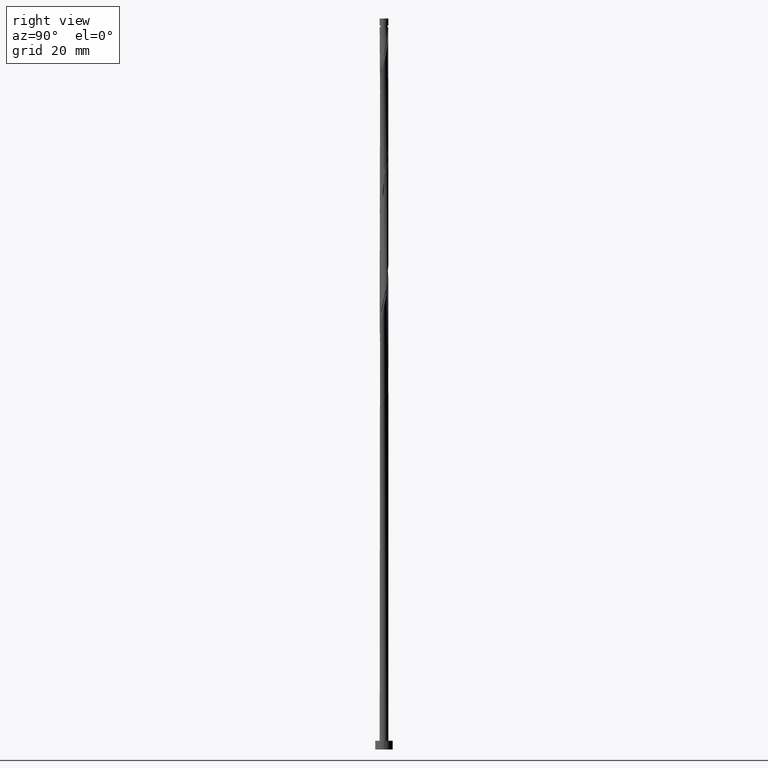
[diagram: clean part render]
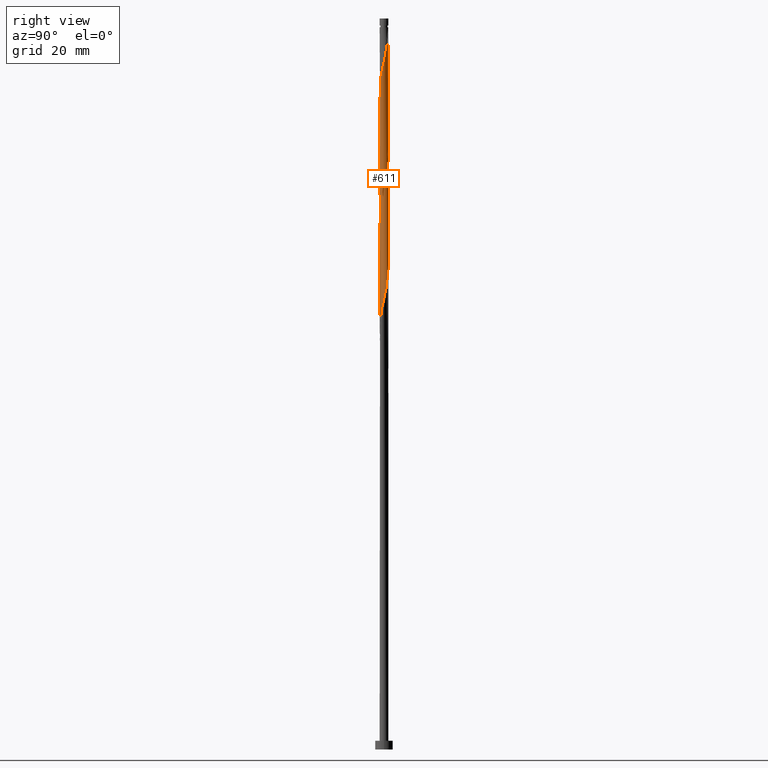
[diagram: same view with one face highlighted and labeled with its STEP entity id]
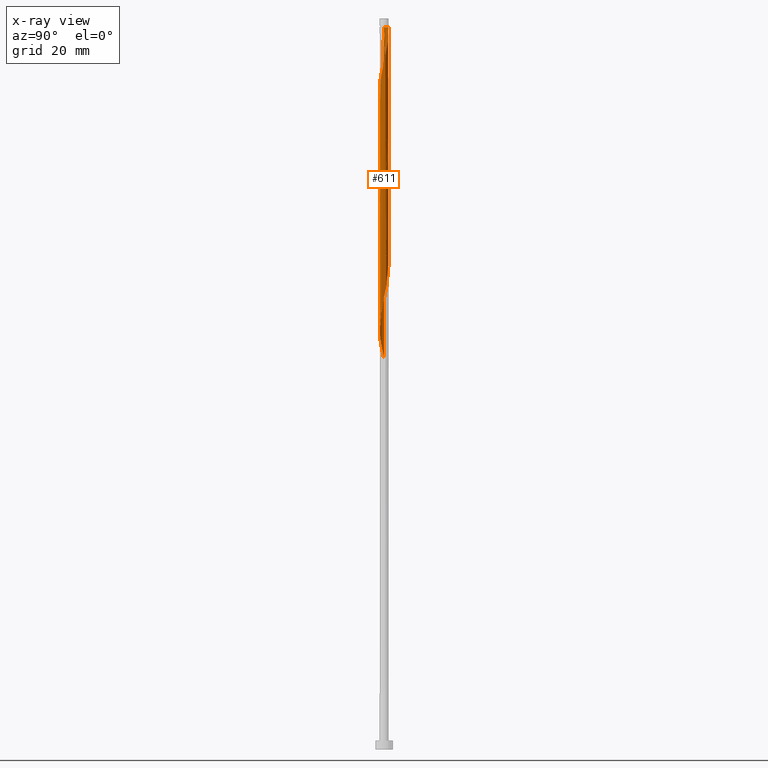
[diagram: x-ray of the same camera — body ghosted, the highlighted face saturated]
A machine part, right view. The second image highlights one B-rep face of the part: STEP entity #611.
The next image is the same camera in x-ray: the body ghosted, the highlighted face saturated — about 0% of this face is hidden behind the body in this view.
In plain terms, the highlighted cylindrical surface (bore or boss wall) has radius 0.75 mm, axis along (-0, -0, -1).
Its self-contained STEP definition (entity closure, byte-faithful):
#6 = CARTESIAN_POINT ( 'NONE',  ( -0.3690708837193969472, -0.6529063353886110921, 70.36957666063429429 ) ) ;
#11 = CARTESIAN_POINT ( 'NONE',  ( -0.2656606792045276833, -0.7113614207465893680, 70.89040999396759446 ) ) ;
#16 = EDGE_CURVE ( 'NONE', #1268, #358, #370, .T. ) ;
#17 = ORIENTED_EDGE ( 'NONE', *, *, #1043, .F. ) ;
#18 = CARTESIAN_POINT ( 'NONE',  ( 0.2032037479510120648, -0.7316549078771213965, 72.97374332730092306 ) ) ;
#26 = CARTESIAN_POINT ( 'NONE',  ( -0.7316549078771213965, -0.2032037479510120925, 67.76540999396760867 ) ) ;
#34 = CARTESIAN_POINT ( 'NONE',  ( -0.7500000000000012212, 9.782999566041570812E-16, 66.86771243543789467 ) ) ;
#38 = CARTESIAN_POINT ( 'NONE',  ( -0.7500000000000001110, 0.000000000000000000, 125.0000000000000000 ) ) ;
#63 = CARTESIAN_POINT ( 'NONE',  ( -0.6529063353886108700, -0.3690708837193967806, 108.9112433273009657 ) ) ;
#66 = EDGE_CURVE ( 'NONE', #1242, #802, #566, .T. ) ;
#70 = CARTESIAN_POINT ( 'NONE',  ( 0.7350000000000010969, 0.1492481155659932113, 118.2862433273009515 ) ) ;
#78 = CARTESIAN_POINT ( 'NONE',  ( 0.5069016496034539632, 0.5527664223062929150, 120.3695766606343085 ) ) ;
#80 = CARTESIAN_POINT ( 'NONE',  ( 0.7500000000000001110, 9.184850993605150903E-17, 125.0000000000000000 ) ) ;
#82 = CARTESIAN_POINT ( 'NONE',  ( -0.5527664223062934701, -0.5069016496034537411, 90.16124332730096569 ) ) ;
#84 = CARTESIAN_POINT ( 'NONE',  ( -0.2032037479510122036, -0.7316549078771213965, 111.5154099939676229 ) ) ;
#85 = EDGE_CURVE ( 'NONE', #1242, #800, #585, .T. ) ;
#103 = CARTESIAN_POINT ( 'NONE',  ( -0.7316549078771213965, -0.2032037479510120925, 88.59874332730095148 ) ) ;
#105 = FACE_OUTER_BOUND ( 'NONE', #847, .T. ) ;
#109 = CARTESIAN_POINT ( 'NONE',  ( -0.6529063353886110921, 0.3690708837193968916, 85.99457666063428007 ) ) ;
#117 = CARTESIAN_POINT ( 'NONE',  ( 0.6330517563783203405, 0.4193520491762750546, 79.22374332730090885 ) ) ;
#135 = CARTESIAN_POINT ( 'NONE',  ( 0.03283555192745900297, 0.7586385792534126038, 103.1820766606342517 ) ) ;
#138 = DIRECTION ( 'NONE',  ( -0.000000000000000000, -0.000000000000000000, -1.000000000000000000 ) ) ;
#143 = CARTESIAN_POINT ( 'NONE',  ( 0.5527664223062936921, 0.5069016496034537411, 100.5779099939676229 ) ) ;
#150 = ORIENTED_EDGE ( 'NONE', *, *, #85, .F. ) ;
#161 = CARTESIAN_POINT ( 'NONE',  ( 0.7451467435652671112, -0.08518409801177667662, 117.2445766606342801 ) ) ;
#164 = ORIENTED_EDGE ( 'NONE', *, *, #16, .T. ) ;
#168 = CARTESIAN_POINT ( 'NONE',  ( -0.7113614207465897010, -0.2656606792045276833, 108.3904099939676371 ) ) ;
#181 = CARTESIAN_POINT ( 'NONE',  ( -0.5944512500306322611, -0.4724810882342659335, 109.4320766606343227 ) ) ;
#187 = CARTESIAN_POINT ( 'NONE',  ( -0.6330517563783203405, -0.4193520491762751656, 89.64040999396760867 ) ) ;
#190 = CARTESIAN_POINT ( 'NONE',  ( -0.5069016496034537411, -0.5527664223062929150, 109.9529099939675945 ) ) ;
#197 = CARTESIAN_POINT ( 'NONE',  ( 0.7500000000000007772, -0.07537783614444378000, 97.78340786003006713 ) ) ;
#213 = CARTESIAN_POINT ( 'NONE',  ( -0.03283555192745912094, -0.7586385792534126038, 92.76540999396762288 ) ) ;
#224 = CARTESIAN_POINT ( 'NONE',  ( -0.5527664223062934701, -0.5069016496034537411, 69.32790999396763709 ) ) ;
#242 = CARTESIAN_POINT ( 'NONE',  ( 0.7350000000000015410, -0.1492481155659935166, 76.61957666063428007 ) ) ;
#252 = CARTESIAN_POINT ( 'NONE',  ( -0.7500000000000012212, -0.04273030308482415884, 67.05722352464516689 ) ) ;
#257 = EDGE_CURVE ( 'NONE', #1268, #802, #646, .T. ) ;
#260 = CARTESIAN_POINT ( 'NONE',  ( -0.7350000000000015410, 0.1492481155659934611, 107.8695766606343085 ) ) ;
#279 = CARTESIAN_POINT ( 'NONE',  ( 0.3112778985636437956, 0.6823533321277208685, 121.4112433273009373 ) ) ;
#296 = CARTESIAN_POINT ( 'NONE',  ( -0.08518409801177663498, -0.7451467435652671112, 112.0362433273009657 ) ) ;
#313 = CARTESIAN_POINT ( 'NONE',  ( -0.2032037479510120925, 0.7316549078771213965, 83.39040999396759446 ) ) ;
#318 = CARTESIAN_POINT ( 'NONE',  ( 0.7500000000000009992, 1.008286162170567901E-15, 98.11771243543790888 ) ) ;
#353 = CARTESIAN_POINT ( 'NONE',  ( 0.4193520491762751656, -0.6330517563783203405, 74.01540999396763709 ) ) ;
#355 = DIRECTION ( 'NONE',  ( -0.000000000000000000, -0.000000000000000000, -1.000000000000000000 ) ) ;
#358 = VERTEX_POINT ( 'NONE', #755 ) ;
#359 = CARTESIAN_POINT ( 'NONE',  ( -0.7500000000000012212, -4.460448078003628014E-16, 108.5343791021045661 ) ) ;
#366 = CARTESIAN_POINT ( 'NONE',  ( 0.2656606792045277943, 0.7113614207465893680, 102.1404099939676087 ) ) ;
#367 = DIRECTION ( 'NONE',  ( -1.000000000000000000, 0.000000000000000000, 0.000000000000000000 ) ) ;
#370 = LINE ( 'NONE', #952, #1088 ) ;
#373 = CARTESIAN_POINT ( 'NONE',  ( -0.7451467435652672222, -0.08518409801177653784, 67.24457666063430850 ) ) ;
#392 = CARTESIAN_POINT ( 'NONE',  ( -0.7350000000000010969, -0.1492481155659933223, 107.8695766606342943 ) ) ;
#398 = CARTESIAN_POINT ( 'NONE',  ( 0.7500000000000009992, 1.008286162170567901E-15, 98.11771243543790888 ) ) ;
#401 = CARTESIAN_POINT ( 'NONE',  ( 0.2656606792045276277, -0.7113614207465897010, 113.5987433273009941 ) ) ;
#407 = CARTESIAN_POINT ( 'NONE',  ( 0.3690708837193967806, -0.6529063353886108700, 114.1195766606343085 ) ) ;
#420 = CARTESIAN_POINT ( 'NONE',  ( 0.6529063353886108700, 0.3690708837193966696, 119.3279099939676087 ) ) ;
#425 = CARTESIAN_POINT ( 'NONE',  ( -0.3112778985636437956, 0.6823533321277210906, 83.91124332730095148 ) ) ;
#431 = CARTESIAN_POINT ( 'NONE',  ( -0.7586385792534126038, 0.03283555192745905155, 87.55707666063429429 ) ) ;
#435 = AXIS2_PLACEMENT_3D ( 'NONE', #1343, #473, #367 ) ;
#465 = CARTESIAN_POINT ( 'NONE',  ( 0.6823533321277210906, 0.3112778985636436846, 78.70290999396763709 ) ) ;
#471 = CARTESIAN_POINT ( 'NONE',  ( -0.2032037479510120925, 0.7316549078771213965, 104.2237433273009373 ) ) ;
#472 = VECTOR ( 'NONE', #138, 1000.000000000000000 ) ;
#473 = DIRECTION ( 'NONE',  ( -0.000000000000000000, -0.000000000000000000, -1.000000000000000000 ) ) ;
#480 = CARTESIAN_POINT ( 'NONE',  ( 0.03283555192745900297, 0.7586385792534126038, 82.34874332730095148 ) ) ;
#486 = CARTESIAN_POINT ( 'NONE',  ( -0.7113614207465895900, 0.2656606792045276833, 107.3487433273009515 ) ) ;
#507 = ORIENTED_EDGE ( 'NONE', *, *, #66, .T. ) ;
#508 = CARTESIAN_POINT ( 'NONE',  ( 0.5944512500306324831, 0.4724810882342659335, 119.8487433273009657 ) ) ;
#513 = CARTESIAN_POINT ( 'NONE',  ( 0.4193520491762752767, 0.6330517563783202295, 120.8904099939676229 ) ) ;
#520 = CARTESIAN_POINT ( 'NONE',  ( -0.1492481155659927672, 0.7349999999999972111, 123.4945766606342943 ) ) ;
#527 = CARTESIAN_POINT ( 'NONE',  ( -0.03283555192746202139, 0.7586385792534130479, 122.9737433273009799 ) ) ;
#534 = CARTESIAN_POINT ( 'NONE',  ( 0.7586385792534124928, 0.03283555192745887807, 117.7654099939676371 ) ) ;
#548 = CARTESIAN_POINT ( 'NONE',  ( 0.7500000000000009992, 1.008286162170567901E-15, 98.11771243543790888 ) ) ;
#554 = CARTESIAN_POINT ( 'NONE',  ( -0.7451467435652672222, -0.08518409801177653784, 88.07790999396762288 ) ) ;
#566 = CIRCLE ( 'NONE', #1113, 0.7499999999999970024 ) ;
#567 = CARTESIAN_POINT ( 'NONE',  ( 0.7316549078771216186, 0.2032037479510120648, 99.01540999396762288 ) ) ;
#576 = CARTESIAN_POINT ( 'NONE',  ( -0.7500000000000013323, 0.07537783614444036606, 108.2000745266967101 ) ) ;
#583 = CARTESIAN_POINT ( 'NONE',  ( 0.5527664223062936921, 0.5069016496034537411, 79.74457666063428007 ) ) ;
#585 = LINE ( 'NONE', #38, #472 ) ;
#591 = CARTESIAN_POINT ( 'NONE',  ( 0.08518409801177649621, -0.7451467435652672222, 72.45290999396763709 ) ) ;
#599 = CARTESIAN_POINT ( 'NONE',  ( 0.6330517563783203405, 0.4193520491762750546, 100.0570766606342801 ) ) ;
#607 =( BOUNDED_CURVE ( )  B_SPLINE_CURVE ( 2, ( #1239, #576, #260, #486, #921, #715, #687, #1160, #1383, #471, #1132, #135, #1030, #366, #817, #1153, #143, #599, #1053, #567, #1021, #1391, #318 ),
 .UNSPECIFIED., .F., .T. ) 
 B_SPLINE_CURVE_WITH_KNOTS ( ( 3, 2, 2, 2, 2, 2, 2, 2, 2, 2, 2, 3 ),
 ( 0.4295322023138550827, 0.4375000000000000000, 0.4500000000000000111, 0.4625000000000000222, 0.4749999999999999778, 0.4874999999999999889, 0.5000000000000000000, 0.5124999999999999556, 0.5250000000000000222, 0.5374999999999999778, 0.5500000000000000444, 0.5545322023138554712 ),
 .UNSPECIFIED. ) 
 CURVE ( )  GEOMETRIC_REPRESENTATION_ITEM ( )  RATIONAL_B_SPLINE_CURVE ( ( 0.9039174447099551646, 0.9019565955404843516, 0.9090909090909328194, 0.8978984914501488834, 0.9090909090909328194, 0.8978984914501488834, 0.9090909090909328194, 0.8978984914501488834, 0.9090909090909328194, 0.8978984914501488834, 0.9090909090909328194, 0.8978984914501488834, 0.9090909090909328194, 0.8978984914501488834, 0.9090909090909328194, 0.8978984914501488834, 0.9090909090909328194, 0.8978984914501488834, 0.9090909090909328194, 0.8978984914501488834, 0.9090909090909328194, 0.9050328050005969072, 0.9039174447099549425 ) ) 
 REPRESENTATION_ITEM ( '' )  );
#611 = ADVANCED_FACE ( 'NONE', ( #105 ), #1451, .T. ) ;
#624 = CARTESIAN_POINT ( 'NONE',  ( 0.08518409801177677376, 0.7451467435652671112, 122.4529099939676229 ) ) ;
#646 =( BOUNDED_CURVE ( )  B_SPLINE_CURVE ( 2, ( #867, #649, #392, #168, #63, #181, #190, #963, #1084, #84, #296, #852, #1200, #401, #407, #1283, #1079, #983, #1205, #1193, #161, #534, #70, #1090, #420, #508, #78, #513, #279, #738, #624, #527, #520 ),
 .UNSPECIFIED., .F., .T. ) 
 B_SPLINE_CURVE_WITH_KNOTS ( ( 3, 2, 2, 2, 2, 2, 2, 2, 2, 2, 2, 2, 2, 2, 2, 2, 3 ),
 ( 0.5545322023138555823, 0.5625000000000000000, 0.5749999999999999556, 0.5875000000000001332, 0.6000000000000000888, 0.6125000000000001554, 0.6250000000000001110, 0.6375000000000000666, 0.6500000000000001332, 0.6625000000000001998, 0.6750000000000002665, 0.6875000000000002220, 0.7000000000000001776, 0.7125000000000003553, 0.7250000000000003109, 0.7375000000000003775, 0.7500000000000003331 ),
 .UNSPECIFIED. ) 
 CURVE ( )  GEOMETRIC_REPRESENTATION_ITEM ( )  RATIONAL_B_SPLINE_CURVE ( ( 0.9039174447099538323, 0.9019565955404836854, 0.9090909090909319312, 0.8978984914501476622, 0.9090909090909319312, 0.8978984914501476622, 0.9090909090909319312, 0.8978984914501476622, 0.9090909090909319312, 0.8978984914501476622, 0.9090909090909319312, 0.8978984914501476622, 0.9090909090909319312, 0.8978984914501476622, 0.9090909090909319312, 0.8978984914501476622, 0.9090909090909319312, 0.8978984914501476622, 0.9090909090909319312, 0.8978984914501476622, 0.9090909090909319312, 0.8978984914501476622, 0.9090909090909319312, 0.8978984914501476622, 0.9090909090909319312, 0.8978984914501476622, 0.9090909090909319312, 0.8978984914501476622, 0.9090909090909319312, 0.8978984914501476622, 0.9090909090909319312, 0.8978984914501473291, 0.9090909090909322643 ) ) 
 REPRESENTATION_ITEM ( '' )  );
#649 = CARTESIAN_POINT ( 'NONE',  ( -0.7500000000000004441, -0.07537783614444464042, 107.5390787945719069 ) ) ;
#664 = CARTESIAN_POINT ( 'NONE',  ( -0.1492481155659934611, -0.7350000000000015410, 92.24457666063429429 ) ) ;
#673 = CARTESIAN_POINT ( 'NONE',  ( -0.3690708837193969472, -0.6529063353886110921, 91.20290999396760867 ) ) ;
#680 = CARTESIAN_POINT ( 'NONE',  ( 0.5069016496034537411, -0.5527664223062934701, 95.36957666063429429 ) ) ;
#687 = CARTESIAN_POINT ( 'NONE',  ( -0.5069016496034538521, 0.5527664223062933591, 105.7862433273009799 ) ) ;
#694 = CARTESIAN_POINT ( 'NONE',  ( -0.03283555192745912094, -0.7586385792534126038, 71.93207666063429429 ) ) ;
#704 = DIRECTION ( 'NONE',  ( -0.000000000000000000, -0.000000000000000000, -1.000000000000000000 ) ) ;
#715 = CARTESIAN_POINT ( 'NONE',  ( -0.5944512500306322611, 0.4724810882342659335, 106.3070766606342801 ) ) ;
#731 = VERTEX_POINT ( 'NONE', #398 ) ;
#732 = CARTESIAN_POINT ( 'NONE',  ( -0.7500000000000012212, 5.172620460205893626E-16, 107.2047742191640509 ) ) ;
#733 = DIRECTION ( 'NONE',  ( -0.000000000000000000, -0.000000000000000000, -1.000000000000000000 ) ) ;
#738 = CARTESIAN_POINT ( 'NONE',  ( 0.2032037479510122313, 0.7316549078771213965, 121.9320766606343085 ) ) ;
#755 = CARTESIAN_POINT ( 'NONE',  ( -0.7500000000000012212, 9.782999566041570812E-16, 66.86771243543789467 ) ) ;
#776 = ORIENTED_EDGE ( 'NONE', *, *, #1043, .T. ) ;
#782 = CARTESIAN_POINT ( 'NONE',  ( 0.4193520491762751656, -0.6330517563783203405, 94.84874332730095148 ) ) ;
#785 = EDGE_CURVE ( 'NONE', #731, #358, #1297, .T. ) ;
#797 = CARTESIAN_POINT ( 'NONE',  ( 0.5944512500306320391, -0.4724810882342659890, 75.05707666063429429 ) ) ;
#800 = VERTEX_POINT ( 'NONE', #359 ) ;
#801 = CARTESIAN_POINT ( 'NONE',  ( -0.4724810882342659890, -0.5944512500306320391, 69.84874332730095148 ) ) ;
#802 = VERTEX_POINT ( 'NONE', #1044 ) ;
#806 = ORIENTED_EDGE ( 'NONE', *, *, #808, .F. ) ;
#807 = CARTESIAN_POINT ( 'NONE',  ( -0.08518409801177662111, 0.7451467435652672222, 82.86957666063429429 ) ) ;
#808 = EDGE_CURVE ( 'NONE', #800, #731, #607, .T. ) ;
#817 = CARTESIAN_POINT ( 'NONE',  ( 0.3690708837193970582, 0.6529063353886110921, 101.6195766606342659 ) ) ;
#824 = CARTESIAN_POINT ( 'NONE',  ( 0.2656606792045277943, 0.7113614207465893680, 81.30707666063428007 ) ) ;
#847 = EDGE_LOOP ( 'NONE', ( #150, #507, #1065, #164, #866, #17, #776, #806 ) ) ;
#852 = CARTESIAN_POINT ( 'NONE',  ( 0.03283555192745890583, -0.7586385792534124928, 112.5570766606342801 ) ) ;
#866 = ORIENTED_EDGE ( 'NONE', *, *, #785, .F. ) ;
#867 = CARTESIAN_POINT ( 'NONE',  ( -0.7500000000000012212, 5.172620460205893626E-16, 107.2047742191640509 ) ) ;
#887 = CARTESIAN_POINT ( 'NONE',  ( -0.2656606792045276833, -0.7113614207465893680, 91.72374332730092306 ) ) ;
#910 = VECTOR ( 'NONE', #733, 1000.000000000000000 ) ;
#916 = CARTESIAN_POINT ( 'NONE',  ( 0.7586385792534126038, -0.03283555192745916257, 77.14040999396760867 ) ) ;
#921 = CARTESIAN_POINT ( 'NONE',  ( -0.6529063353886110921, 0.3690708837193968916, 106.8279099939676371 ) ) ;
#931 = CARTESIAN_POINT ( 'NONE',  ( 0.7316549078771216186, 0.2032037479510120648, 78.18207666063426586 ) ) ;
#940 = CARTESIAN_POINT ( 'NONE',  ( 0.3112778985636437401, -0.6823533321277210906, 73.49457666063429429 ) ) ;
#952 = CARTESIAN_POINT ( 'NONE',  ( -0.7500000000000001110, 0.000000000000000000, 125.0000000000000000 ) ) ;
#963 = CARTESIAN_POINT ( 'NONE',  ( -0.4193520491762752767, -0.6330517563783203405, 110.4737433273009657 ) ) ;
#983 = CARTESIAN_POINT ( 'NONE',  ( 0.6330517563783203405, -0.4193520491762752767, 115.6820766606343085 ) ) ;
#989 = CARTESIAN_POINT ( 'NONE',  ( -0.5069016496034538521, 0.5527664223062933591, 84.95290999396762288 ) ) ;
#997 = CARTESIAN_POINT ( 'NONE',  ( 0.7350000000000015410, -0.1492481155659935166, 97.45290999396763709 ) ) ;
#1004 = CARTESIAN_POINT ( 'NONE',  ( 0.08518409801177649621, -0.7451467435652672222, 93.28624332730095148 ) ) ;
#1021 = CARTESIAN_POINT ( 'NONE',  ( 0.7451467435652672222, 0.08518409801177645457, 98.49457666063430850 ) ) ;
#1030 = CARTESIAN_POINT ( 'NONE',  ( 0.1492481155659935721, 0.7350000000000015410, 102.6612433273009799 ) ) ;
#1037 = CARTESIAN_POINT ( 'NONE',  ( 0.6529063353886110921, -0.3690708837193969472, 75.57790999396762288 ) ) ;
#1043 = EDGE_CURVE ( 'NONE', #1366, #731, #1287, .T. ) ;
#1044 = CARTESIAN_POINT ( 'NONE',  ( -0.1492481155659927672, 0.7349999999999972111, 123.4945766606342943 ) ) ;
#1053 = CARTESIAN_POINT ( 'NONE',  ( 0.6823533321277210906, 0.3112778985636436846, 99.53624332730097990 ) ) ;
#1065 = ORIENTED_EDGE ( 'NONE', *, *, #257, .F. ) ;
#1079 = CARTESIAN_POINT ( 'NONE',  ( 0.5527664223062929150, -0.5069016496034537411, 115.1612433273009515 ) ) ;
#1084 = CARTESIAN_POINT ( 'NONE',  ( -0.3112778985636437401, -0.6823533321277208685, 110.9945766606342659 ) ) ;
#1088 = VECTOR ( 'NONE', #355, 1000.000000000000000 ) ;
#1090 = CARTESIAN_POINT ( 'NONE',  ( 0.7113614207465897010, 0.2656606792045275722, 118.8070766606343227 ) ) ;
#1095 = CARTESIAN_POINT ( 'NONE',  ( -0.5944512500306322611, 0.4724810882342659335, 85.47374332730092306 ) ) ;
#1113 = AXIS2_PLACEMENT_3D ( 'NONE', #1147, #704, #1156 ) ;
#1121 = CARTESIAN_POINT ( 'NONE',  ( -0.4724810882342659890, -0.5944512500306320391, 90.68207666063425165 ) ) ;
#1127 = CARTESIAN_POINT ( 'NONE',  ( -0.7113614207465895900, 0.2656606792045276833, 86.51540999396762288 ) ) ;
#1132 = CARTESIAN_POINT ( 'NONE',  ( -0.08518409801177662111, 0.7451467435652672222, 103.7029099939676229 ) ) ;
#1139 = CARTESIAN_POINT ( 'NONE',  ( 0.5069016496034537411, -0.5527664223062934701, 74.53624332730095148 ) ) ;
#1145 = CARTESIAN_POINT ( 'NONE',  ( 0.3690708837193970582, 0.6529063353886110921, 80.78624332730095148 ) ) ;
#1147 = CARTESIAN_POINT ( 'NONE',  ( 0.000000000000000000, 0.000000000000000000, 123.4945766606342943 ) ) ;
#1153 = CARTESIAN_POINT ( 'NONE',  ( 0.4724810882342659890, 0.5944512500306320391, 101.0987433273009373 ) ) ;
#1156 = DIRECTION ( 'NONE',  ( -1.000000000000000000, 0.000000000000000000, 0.000000000000000000 ) ) ;
#1160 = CARTESIAN_POINT ( 'NONE',  ( -0.4193520491762752767, 0.6330517563783203405, 105.2654099939676229 ) ) ;
#1193 = CARTESIAN_POINT ( 'NONE',  ( 0.7316549078771213965, -0.2032037479510122313, 116.7237433273009657 ) ) ;
#1200 = CARTESIAN_POINT ( 'NONE',  ( 0.1492481155659932390, -0.7350000000000010969, 113.0779099939675945 ) ) ;
#1203 = CARTESIAN_POINT ( 'NONE',  ( 0.3112778985636437401, -0.6823533321277210906, 94.32790999396763709 ) ) ;
#1205 = CARTESIAN_POINT ( 'NONE',  ( 0.6823533321277208685, -0.3112778985636437401, 116.2029099939676087 ) ) ;
#1233 = CARTESIAN_POINT ( 'NONE',  ( -0.7350000000000015410, 0.1492481155659934611, 87.03624332730097990 ) ) ;
#1238 = CARTESIAN_POINT ( 'NONE',  ( -0.7499999999999970024, 0.000000000000000000, 123.4945766606342943 ) ) ;
#1239 = CARTESIAN_POINT ( 'NONE',  ( -0.7500000000000012212, -4.460448078003628014E-16, 108.5343791021045661 ) ) ;
#1242 = VERTEX_POINT ( 'NONE', #1238 ) ;
#1250 = CARTESIAN_POINT ( 'NONE',  ( 0.7451467435652672222, 0.08518409801177645457, 77.66124332730096569 ) ) ;
#1258 = CARTESIAN_POINT ( 'NONE',  ( -0.6330517563783203405, -0.4193520491762751656, 68.80707666063428007 ) ) ;
#1266 = CARTESIAN_POINT ( 'NONE',  ( 0.4724810882342659890, 0.5944512500306320391, 80.26540999396762288 ) ) ;
#1268 = VERTEX_POINT ( 'NONE', #732 ) ;
#1283 = CARTESIAN_POINT ( 'NONE',  ( 0.4724810882342659335, -0.5944512500306322611, 114.6404099939676229 ) ) ;
#1287 = LINE ( 'NONE', #80, #910 ) ;
#1297 =( BOUNDED_CURVE ( )  B_SPLINE_CURVE ( 2, ( #548, #197, #997, #1350, #1317, #1455, #680, #782, #1203, #1333, #1004, #213, #664, #887, #673, #1121, #82, #187, #1430, #103, #554, #431, #1233, #1127, #109, #1095, #989, #1424, #425, #313, #807, #480, #1356, #824, #1145, #1266, #583, #117, #465, #931, #1250, #916, #242, #1377, #1037, #797, #1139, #353, #940, #18, #591, #694, #1360, #11, #6, #801, #224, #1258, #1367, #26, #373, #252, #34 ),
 .UNSPECIFIED., .F., .T. ) 
 B_SPLINE_CURVE_WITH_KNOTS ( ( 3, 2, 2, 2, 2, 2, 2, 2, 2, 2, 2, 2, 2, 2, 2, 2, 2, 2, 2, 2, 2, 2, 2, 2, 2, 2, 2, 2, 2, 2, 2, 3 ),
 ( 0.5545322023138554712, 0.5625000000000000000, 0.5749999999999999556, 0.5875000000000000222, 0.5999999999999999778, 0.6125000000000000444, 0.6250000000000000000, 0.6374999999999999556, 0.6500000000000000222, 0.6624999999999999778, 0.6750000000000000444, 0.6875000000000000000, 0.6999999999999999556, 0.7125000000000000222, 0.7249999999999999778, 0.7375000000000000444, 0.7500000000000000000, 0.7624999999999999556, 0.7750000000000000222, 0.7874999999999999778, 0.8000000000000000444, 0.8125000000000000000, 0.8249999999999999556, 0.8375000000000000222, 0.8499999999999999778, 0.8625000000000000444, 0.8750000000000000000, 0.8874999999999999556, 0.9000000000000000222, 0.9124999999999999778, 0.9250000000000000444, 0.9295322023138552492 ),
 .UNSPECIFIED. ) 
 CURVE ( )  GEOMETRIC_REPRESENTATION_ITEM ( )  RATIONAL_B_SPLINE_CURVE ( ( 0.9039174447099549425, 0.9019565955404845736, 0.9090909090909328194, 0.8978984914501488834, 0.9090909090909328194, 0.8978984914501488834, 0.9090909090909328194, 0.8978984914501488834, 0.9090909090909328194, 0.8978984914501488834, 0.9090909090909328194, 0.8978984914501488834, 0.9090909090909328194, 0.8978984914501488834, 0.9090909090909328194, 0.8978984914501488834, 0.9090909090909328194, 0.8978984914501488834, 0.9090909090909328194, 0.8978984914501488834, 0.9090909090909328194, 0.8978984914501488834, 0.9090909090909328194, 0.8978984914501488834, 0.9090909090909328194, 0.8978984914501488834, 0.9090909090909328194, 0.8978984914501488834, 0.9090909090909328194, 0.8978984914501488834, 0.9090909090909328194, 0.8978984914501488834, 0.9090909090909328194, 0.8978984914501488834, 0.9090909090909328194, 0.8978984914501488834, 0.9090909090909328194, 0.8978984914501488834, 0.9090909090909328194, 0.8978984914501488834, 0.9090909090909328194, 0.8978984914501488834, 0.9090909090909328194, 0.8978984914501488834, 0.9090909090909328194, 0.8978984914501488834, 0.9090909090909328194, 0.8978984914501488834, 0.9090909090909328194, 0.8978984914501488834, 0.9090909090909328194, 0.8978984914501488834, 0.9090909090909328194, 0.8978984914501488834, 0.9090909090909328194, 0.8978984914501488834, 0.9090909090909328194, 0.8978984914501488834, 0.9090909090909328194, 0.8978984914501488834, 0.9090909090909328194, 0.9050328050005971292, 0.9039174447099550536 ) ) 
 REPRESENTATION_ITEM ( '' )  );
#1317 = CARTESIAN_POINT ( 'NONE',  ( 0.6529063353886110921, -0.3690708837193969472, 96.41124332730096569 ) ) ;
#1333 = CARTESIAN_POINT ( 'NONE',  ( 0.2032037479510120648, -0.7316549078771213965, 93.80707666063428007 ) ) ;
#1343 = CARTESIAN_POINT ( 'NONE',  ( 0.000000000000000000, 0.000000000000000000, 125.0000000000000000 ) ) ;
#1350 = CARTESIAN_POINT ( 'NONE',  ( 0.7113614207465893680, -0.2656606792045277388, 96.93207666063428007 ) ) ;
#1356 = CARTESIAN_POINT ( 'NONE',  ( 0.1492481155659935721, 0.7350000000000015410, 81.82790999396763709 ) ) ;
#1360 = CARTESIAN_POINT ( 'NONE',  ( -0.1492481155659934611, -0.7350000000000015410, 71.41124332730093727 ) ) ;
#1366 = VERTEX_POINT ( 'NONE', #1422 ) ;
#1367 = CARTESIAN_POINT ( 'NONE',  ( -0.6823533321277210906, -0.3112778985636437401, 68.28624332730097990 ) ) ;
#1377 = CARTESIAN_POINT ( 'NONE',  ( 0.7113614207465893680, -0.2656606792045277388, 76.09874332730096569 ) ) ;
#1383 = CARTESIAN_POINT ( 'NONE',  ( -0.3112778985636437956, 0.6823533321277210906, 104.7445766606342943 ) ) ;
#1391 = CARTESIAN_POINT ( 'NONE',  ( 0.7500000000000017764, 0.04273030308482197309, 98.30722352464519531 ) ) ;
#1422 = CARTESIAN_POINT ( 'NONE',  ( 0.7500000000000001110, 9.184850993605150903E-17, 123.4945766606342943 ) ) ;
#1424 = CARTESIAN_POINT ( 'NONE',  ( -0.4193520491762752767, 0.6330517563783203405, 84.43207666063428007 ) ) ;
#1430 = CARTESIAN_POINT ( 'NONE',  ( -0.6823533321277210906, -0.3112778985636437401, 89.11957666063430850 ) ) ;
#1451 = CYLINDRICAL_SURFACE ( 'NONE', #435, 0.7500000000000001110 ) ;
#1455 = CARTESIAN_POINT ( 'NONE',  ( 0.5944512500306320391, -0.4724810882342659890, 95.89040999396760867 ) ) ;